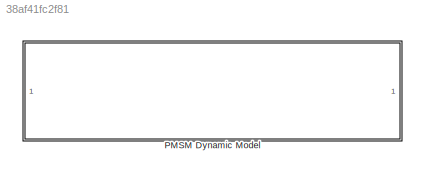
MODEL slx_38af41fc2f81
KIND model
CONFIG AbsTol = auto
CONFIG EnableMultiTasking = off
CONFIG FixedStep = auto
CONFIG MaxStep = auto
CONFIG MinStep = auto
CONFIG RelTol = 1e-3
CONFIG SampleTimeConstraint = Unconstrained
CONFIG SolverName = VariableStepAuto
CONFIG StartTime = 0.0
CONFIG StopTime = 10.0
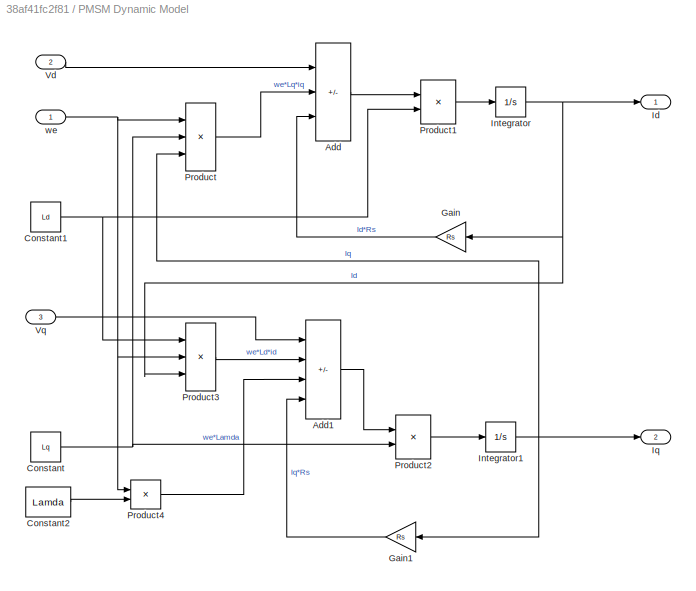
BLOCK [SubSystem] PMSM Dynamic Model
BLOCK [Sum] PMSM Dynamic Model/Add
  IconShape = rectangular
  Inputs = ++-
BLOCK [Sum] PMSM Dynamic Model/Add1
  IconShape = rectangular
  Inputs = +---
BLOCK [Constant] PMSM Dynamic Model/Constant
  Value = Lq
BLOCK [Constant] PMSM Dynamic Model/Constant1
  Value = Ld
BLOCK [Constant] PMSM Dynamic Model/Constant2
  Value = Lamda
BLOCK [Gain] PMSM Dynamic Model/Gain
  Gain = Rs
  NameLocation = top
BLOCK [Gain] PMSM Dynamic Model/Gain1
  Gain = Rs
  NameLocation = top
BLOCK [Outport] PMSM Dynamic Model/Id
BLOCK [Integrator] PMSM Dynamic Model/Integrator
BLOCK [Integrator] PMSM Dynamic Model/Integrator1
BLOCK [Outport] PMSM Dynamic Model/Iq
  Port = 2
BLOCK [Product] PMSM Dynamic Model/Product
  Inputs = 3
BLOCK [Product] PMSM Dynamic Model/Product1
  Inputs = */
BLOCK [Product] PMSM Dynamic Model/Product2
  Inputs = */
BLOCK [Product] PMSM Dynamic Model/Product3
  Inputs = 3
BLOCK [Product] PMSM Dynamic Model/Product4
  Inputs = **
BLOCK [Inport] PMSM Dynamic Model/Vd
  Port = 2
BLOCK [Inport] PMSM Dynamic Model/Vq
  Port = 3
BLOCK [Inport] PMSM Dynamic Model/we
LINE PMSM Dynamic Model/Add1:1 -> PMSM Dynamic Model/Product2:1
LINE PMSM Dynamic Model/Add:1 -> PMSM Dynamic Model/Product1:1
NET PMSM Dynamic Model/Constant1:1 -> PMSM Dynamic Model/Product1:2, PMSM Dynamic Model/Product3:1
LINE PMSM Dynamic Model/Constant2:1 -> PMSM Dynamic Model/Product4:2
NET PMSM Dynamic Model/Constant:1 -> PMSM Dynamic Model/Product2:2, PMSM Dynamic Model/Product:2
LINE PMSM Dynamic Model/Gain1:1 -> PMSM Dynamic Model/Add1:4
LINE PMSM Dynamic Model/Gain:1 -> PMSM Dynamic Model/Add:3
NET PMSM Dynamic Model/Integrator1:1 -> PMSM Dynamic Model/Gain1:1, PMSM Dynamic Model/Iq:1, PMSM Dynamic Model/Product:3
NET PMSM Dynamic Model/Integrator:1 -> PMSM Dynamic Model/Gain:1, PMSM Dynamic Model/Id:1, PMSM Dynamic Model/Product3:3
LINE PMSM Dynamic Model/Product1:1 -> PMSM Dynamic Model/Integrator:1
LINE PMSM Dynamic Model/Product2:1 -> PMSM Dynamic Model/Integrator1:1
LINE PMSM Dynamic Model/Product3:1 -> PMSM Dynamic Model/Add1:2
LINE PMSM Dynamic Model/Product4:1 -> PMSM Dynamic Model/Add1:3
LINE PMSM Dynamic Model/Product:1 -> PMSM Dynamic Model/Add:2
LINE PMSM Dynamic Model/Vd:1 -> PMSM Dynamic Model/Add:1
LINE PMSM Dynamic Model/Vq:1 -> PMSM Dynamic Model/Add1:1
NET PMSM Dynamic Model/we:1 -> PMSM Dynamic Model/Product3:2, PMSM Dynamic Model/Product4:1, PMSM Dynamic Model/Product:1
note: NET lines group one-source signal fan-out (src -> all destinations, sorted); 1:1 wires keep LINE
